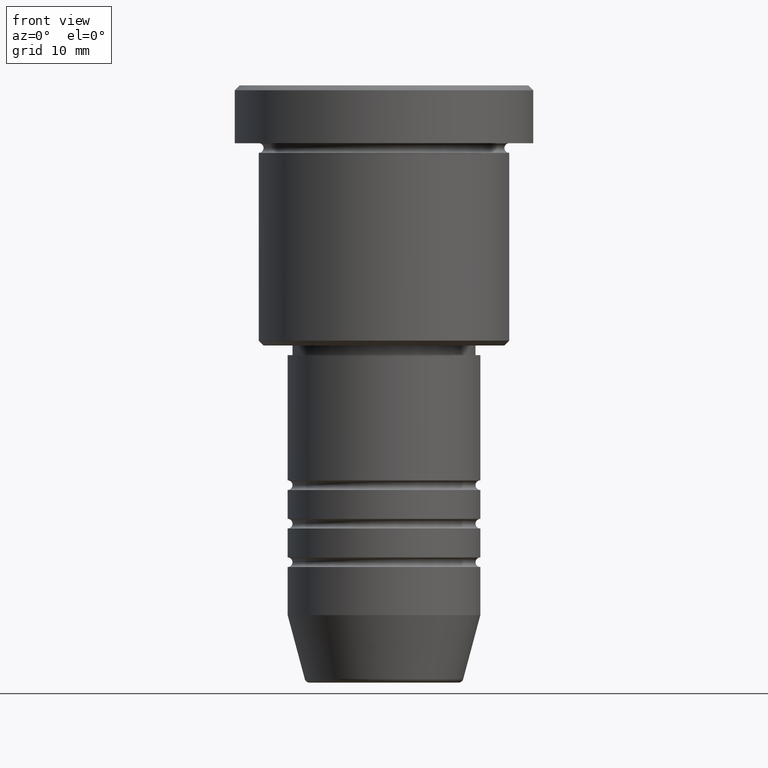
[diagram: clean part render]
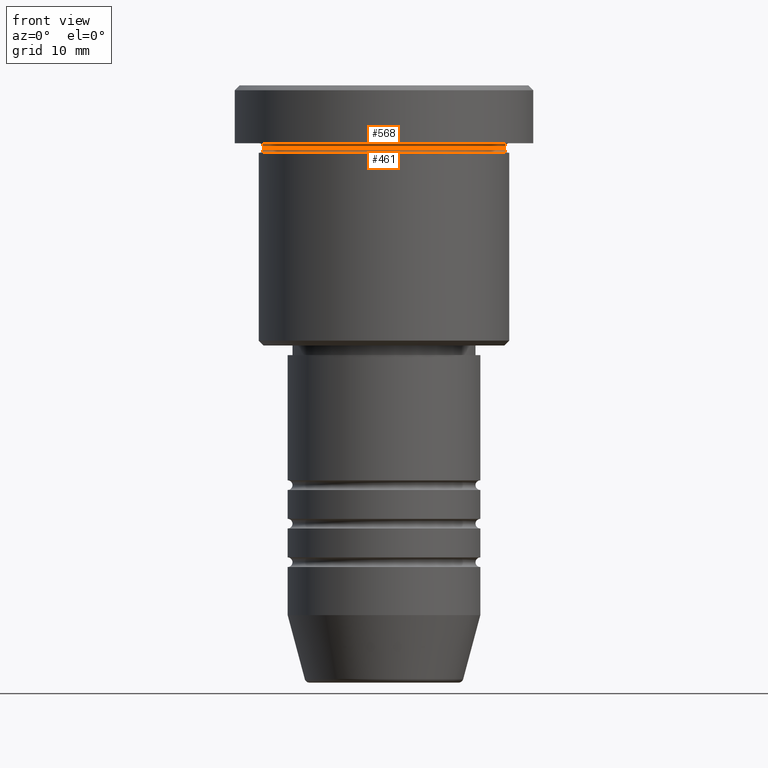
[diagram: same view with one multi-face feature highlighted, each face labeled with its STEP entity id]
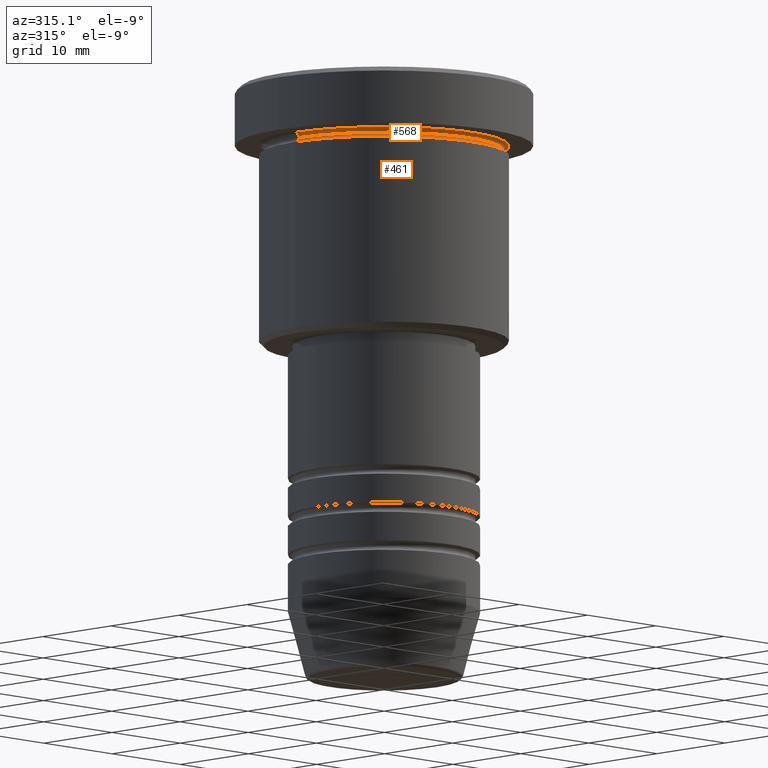
[diagram: same view with one multi-face feature highlighted, each face labeled with its STEP entity id]
A machine part, front view. The highlighted faces form ONE feature: a constant-radius fillet chain: 2 tangent blend faces with common blend radius 0.5 mm. The faces share edges in the B-rep.
A second angle (auxiliary view) of the same feature is appended — it is thin or edge-on in the first view.
Their STEP definitions:
[1] entity #461 (Torus):
#57 = DIRECTION ( 'NONE',  ( -1.000000000000000000, 1.224646799147353454E-16, 0.000000000000000000 ) ) ;
#155 = CARTESIAN_POINT ( 'NONE',  ( -13.00000000000000178, 1.592040838891559293E-15, -6.999999999999995559 ) ) ;
#159 = DIRECTION ( 'NONE',  ( -0.000000000000000000, -0.000000000000000000, 1.000000000000000000 ) ) ;
#186 = ORIENTED_EDGE ( 'NONE', *, *, #774, .F. ) ;
#222 = CIRCLE ( 'NONE', #808, 0.5000000000000004441 ) ;
#256 = EDGE_CURVE ( 'NONE', #914, #787, #222, .T. ) ;
#327 = DIRECTION ( 'NONE',  ( 1.000000000000000000, 0.000000000000000000, 0.000000000000000000 ) ) ;
#334 = DIRECTION ( 'NONE',  ( -0.000000000000000000, -0.000000000000000000, 1.000000000000000000 ) ) ;
#354 = CARTESIAN_POINT ( 'NONE',  ( -13.00000000000000000, 1.592040838891559095E-15, -6.499999999999995559 ) ) ;
#416 = CARTESIAN_POINT ( 'NONE',  ( 0.000000000000000000, 0.000000000000000000, -6.999999999999995559 ) ) ;
#419 = FACE_OUTER_BOUND ( 'NONE', #571, .T. ) ;
#435 = DIRECTION ( 'NONE',  ( 1.000000000000000000, 0.000000000000000000, 0.000000000000000000 ) ) ;
#443 = AXIS2_PLACEMENT_3D ( 'NONE', #416, #334, #327 ) ;
#448 = CARTESIAN_POINT ( 'NONE',  ( 13.00000000000000178, 0.000000000000000000, -6.999999999999995559 ) ) ;
#461 = ADVANCED_FACE ( 'NONE', ( #419 ), #684, .F. ) ;
#496 = DIRECTION ( 'NONE',  ( 0.000000000000000000, 0.000000000000000000, -1.000000000000000000 ) ) ;
#522 = CARTESIAN_POINT ( 'NONE',  ( 0.000000000000000000, 0.000000000000000000, -6.499999999999995559 ) ) ;
#530 = EDGE_CURVE ( 'NONE', #827, #787, #1165, .T. ) ;
#571 = EDGE_LOOP ( 'NONE', ( #186, #946, #959, #911 ) ) ;
#635 = CARTESIAN_POINT ( 'NONE',  ( 0.000000000000000000, 0.000000000000000000, -6.499999999999995559 ) ) ;
#647 = AXIS2_PLACEMENT_3D ( 'NONE', #522, #159, #797 ) ;
#661 = CARTESIAN_POINT ( 'NONE',  ( 13.00000000000000000, 0.000000000000000000, -6.499999999999995559 ) ) ;
#684 = TOROIDAL_SURFACE ( 'NONE', #647, 13.00000000000000000, 0.5000000000000000000 ) ;
#744 = CARTESIAN_POINT ( 'NONE',  ( -12.49999999999999822, 1.561424668912875308E-15, -6.499999999999995559 ) ) ;
#774 = EDGE_CURVE ( 'NONE', #910, #914, #848, .T. ) ;
#787 = VERTEX_POINT ( 'NONE', #448 ) ;
#797 = DIRECTION ( 'NONE',  ( 1.000000000000000000, 0.000000000000000000, 0.000000000000000000 ) ) ;
#798 = EDGE_CURVE ( 'NONE', #910, #827, #1167, .T. ) ;
#808 = AXIS2_PLACEMENT_3D ( 'NONE', #661, #1032, #496 ) ;
#817 = DIRECTION ( 'NONE',  ( 1.224646799147353207E-16, 1.000000000000000000, 0.000000000000000000 ) ) ;
#827 = VERTEX_POINT ( 'NONE', #155 ) ;
#848 = CIRCLE ( 'NONE', #904, 12.49999999999999822 ) ;
#904 = AXIS2_PLACEMENT_3D ( 'NONE', #635, #1149, #435 ) ;
#910 = VERTEX_POINT ( 'NONE', #744 ) ;
#911 = ORIENTED_EDGE ( 'NONE', *, *, #256, .F. ) ;
#914 = VERTEX_POINT ( 'NONE', #1116 ) ;
#946 = ORIENTED_EDGE ( 'NONE', *, *, #798, .T. ) ;
#959 = ORIENTED_EDGE ( 'NONE', *, *, #530, .T. ) ;
#1001 = AXIS2_PLACEMENT_3D ( 'NONE', #354, #817, #57 ) ;
#1032 = DIRECTION ( 'NONE',  ( 0.000000000000000000, -1.000000000000000000, 0.000000000000000000 ) ) ;
#1116 = CARTESIAN_POINT ( 'NONE',  ( 12.49999999999999822, 0.000000000000000000, -6.499999999999995559 ) ) ;
#1149 = DIRECTION ( 'NONE',  ( -0.000000000000000000, -0.000000000000000000, 1.000000000000000000 ) ) ;
#1165 = CIRCLE ( 'NONE', #443, 13.00000000000000178 ) ;
#1167 = CIRCLE ( 'NONE', #1001, 0.5000000000000004441 ) ;
[2] entity #568 (Torus):
#20 = EDGE_CURVE ( 'NONE', #914, #722, #301, .T. ) ;
#50 = DIRECTION ( 'NONE',  ( -1.000000000000000000, 0.000000000000000000, 0.000000000000000000 ) ) ;
#75 = CARTESIAN_POINT ( 'NONE',  ( 0.000000000000000000, 0.000000000000000000, -6.499999999999995559 ) ) ;
#150 = VERTEX_POINT ( 'NONE', #1015 ) ;
#156 = AXIS2_PLACEMENT_3D ( 'NONE', #560, #648, #653 ) ;
#246 = DIRECTION ( 'NONE',  ( -1.000000000000000000, 0.000000000000000000, 0.000000000000000000 ) ) ;
#266 = ORIENTED_EDGE ( 'NONE', *, *, #315, .F. ) ;
#301 = CIRCLE ( 'NONE', #646, 0.5000000000000004441 ) ;
#315 = EDGE_CURVE ( 'NONE', #150, #722, #364, .T. ) ;
#321 = AXIS2_PLACEMENT_3D ( 'NONE', #75, #710, #50 ) ;
#364 = CIRCLE ( 'NONE', #1182, 13.00000000000000000 ) ;
#435 = DIRECTION ( 'NONE',  ( 1.000000000000000000, 0.000000000000000000, 0.000000000000000000 ) ) ;
#500 = EDGE_LOOP ( 'NONE', ( #621, #1173, #266, #1099 ) ) ;
#519 = CARTESIAN_POINT ( 'NONE',  ( 13.00000000000000000, 1.592040838891559095E-15, -6.499999999999995559 ) ) ;
#527 = DIRECTION ( 'NONE',  ( -1.224646799147353207E-16, 1.000000000000000000, 0.000000000000000000 ) ) ;
#560 = CARTESIAN_POINT ( 'NONE',  ( -13.00000000000000000, 0.000000000000000000, -6.499999999999995559 ) ) ;
#568 = ADVANCED_FACE ( 'NONE', ( #1068 ), #846, .F. ) ;
#583 = CARTESIAN_POINT ( 'NONE',  ( 13.00000000000000000, 1.592040838891559095E-15, -5.999999999999994671 ) ) ;
#621 = ORIENTED_EDGE ( 'NONE', *, *, #774, .T. ) ;
#635 = CARTESIAN_POINT ( 'NONE',  ( 0.000000000000000000, 0.000000000000000000, -6.499999999999995559 ) ) ;
#646 = AXIS2_PLACEMENT_3D ( 'NONE', #519, #527, #872 ) ;
#648 = DIRECTION ( 'NONE',  ( -0.000000000000000000, -1.000000000000000000, -0.000000000000000000 ) ) ;
#653 = DIRECTION ( 'NONE',  ( 0.000000000000000000, 0.000000000000000000, -1.000000000000000000 ) ) ;
#710 = DIRECTION ( 'NONE',  ( 0.000000000000000000, 0.000000000000000000, -1.000000000000000000 ) ) ;
#722 = VERTEX_POINT ( 'NONE', #583 ) ;
#744 = CARTESIAN_POINT ( 'NONE',  ( -12.49999999999999822, 1.561424668912875308E-15, -6.499999999999995559 ) ) ;
#770 = DIRECTION ( 'NONE',  ( -0.000000000000000000, -0.000000000000000000, 1.000000000000000000 ) ) ;
#774 = EDGE_CURVE ( 'NONE', #910, #914, #848, .T. ) ;
#846 = TOROIDAL_SURFACE ( 'NONE', #321, 13.00000000000000000, 0.5000000000000000000 ) ;
#848 = CIRCLE ( 'NONE', #904, 12.49999999999999822 ) ;
#860 = CARTESIAN_POINT ( 'NONE',  ( 0.000000000000000000, 0.000000000000000000, -5.999999999999995559 ) ) ;
#872 = DIRECTION ( 'NONE',  ( -1.000000000000000000, -1.224646799147353454E-16, 0.000000000000000000 ) ) ;
#904 = AXIS2_PLACEMENT_3D ( 'NONE', #635, #1149, #435 ) ;
#910 = VERTEX_POINT ( 'NONE', #744 ) ;
#914 = VERTEX_POINT ( 'NONE', #1116 ) ;
#947 = EDGE_CURVE ( 'NONE', #910, #150, #1168, .T. ) ;
#1015 = CARTESIAN_POINT ( 'NONE',  ( -13.00000000000000000, 0.000000000000000000, -5.999999999999994671 ) ) ;
#1068 = FACE_OUTER_BOUND ( 'NONE', #500, .T. ) ;
#1099 = ORIENTED_EDGE ( 'NONE', *, *, #947, .F. ) ;
#1116 = CARTESIAN_POINT ( 'NONE',  ( 12.49999999999999822, 0.000000000000000000, -6.499999999999995559 ) ) ;
#1149 = DIRECTION ( 'NONE',  ( -0.000000000000000000, -0.000000000000000000, 1.000000000000000000 ) ) ;
#1168 = CIRCLE ( 'NONE', #156, 0.5000000000000004441 ) ;
#1173 = ORIENTED_EDGE ( 'NONE', *, *, #20, .T. ) ;
#1182 = AXIS2_PLACEMENT_3D ( 'NONE', #860, #770, #246 ) ;